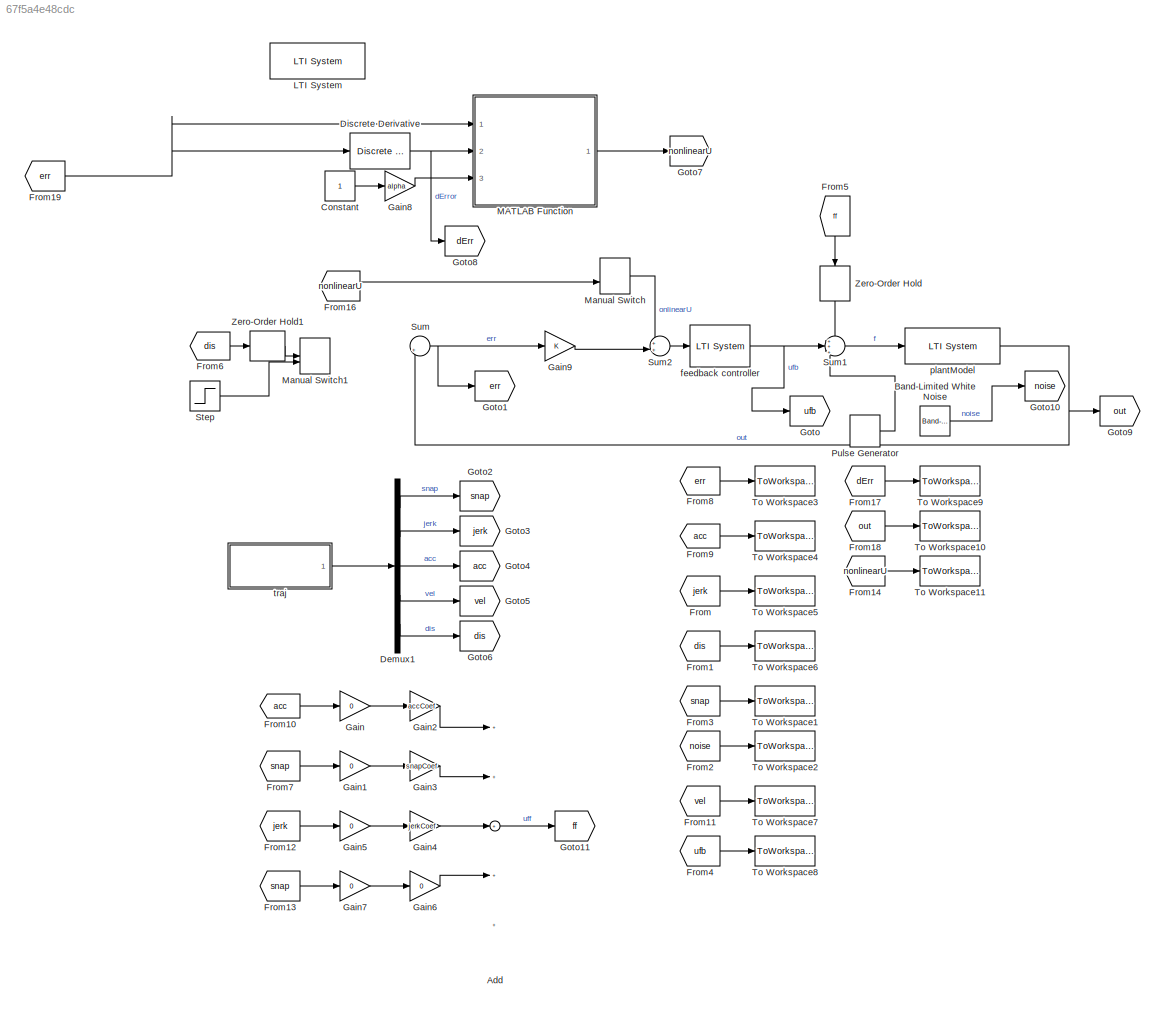
MODEL slx_67f5a4e48cdc
KIND model
CONFIG AbsTol = auto
CONFIG EnableMultiTasking = off
CONFIG FixedStep = 2e-4
CONFIG MaxStep = auto
CONFIG MinStep = auto
CONFIG RelTol = 1e-3
CONFIG SampleTimeConstraint = Unconstrained
CONFIG Solver = VariableStepAuto
CONFIG SolverName = VariableStepAuto
CONFIG StartTime = 0.0
CONFIG StopTime = 0.01
BLOCK [Sum] Add
  InputSameDT = off
  Inputs = +++++
  OutDataTypeStr = Inherit: Inherit via internal rule
  Ports = [5, 1]
  SaturateOnIntegerOverflow = off
BLOCK [Reference] Band-Limited White Noise  REF=simulink/Sources/Band-Limited
White Noise
  Ports = [0, 1]
  SourceBlock = simulink/Sources/Band-Limited\nWhite Noise
  SourceProductBaseCode = SL
  SourceProductName = Simulink
  SourceType = Band-Limited White Noise.
BLOCK [Constant] Constant
BLOCK [Demux] Demux1
  DisplayOption = bar
  Outputs = 5
  Ports = [1, 5]
BLOCK [Reference] Discrete Derivative  REF=simulink/Discrete/Discrete Derivative
  Ports = [1, 1]
  SourceBlock = simulink/Discrete/Discrete Derivative
  SourceProductBaseCode = SL
  SourceProductName = Simulink
  SourceType = Discrete Derivative
BLOCK [From] From
  GotoTag = jerk
BLOCK [From] From1
  GotoTag = dis
BLOCK [From] From10
  GotoTag = acc
BLOCK [From] From11
  GotoTag = vel
BLOCK [From] From12
  GotoTag = jerk
BLOCK [From] From13
  GotoTag = snap
BLOCK [From] From14
  GotoTag = nonlinearU
BLOCK [From] From16
  GotoTag = nonlinearU
BLOCK [From] From17
  GotoTag = dErr
BLOCK [From] From18
  GotoTag = out
BLOCK [From] From19
  GotoTag = err
BLOCK [From] From2
  GotoTag = noise
BLOCK [From] From3
  GotoTag = snap
BLOCK [From] From4
  GotoTag = ufb
BLOCK [From] From5
  GotoTag = ff
BLOCK [From] From6
  GotoTag = dis
BLOCK [From] From7
  GotoTag = snap
BLOCK [From] From8
  GotoTag = err
BLOCK [From] From9
  GotoTag = acc
BLOCK [Gain] Gain
  Gain = 0
  OutDataTypeStr = Inherit: Inherit via internal rule
  ParamDataTypeStr = Inherit: Inherit via internal rule
  SaturateOnIntegerOverflow = off
BLOCK [Gain] Gain1
  Gain = 0
  OutDataTypeStr = Inherit: Inherit via internal rule
  ParamDataTypeStr = Inherit: Inherit via internal rule
  SaturateOnIntegerOverflow = off
BLOCK [Gain] Gain2
  Gain = accCoef
  OutDataTypeStr = Inherit: Inherit via internal rule
  ParamDataTypeStr = Inherit: Inherit via internal rule
  SaturateOnIntegerOverflow = off
BLOCK [Gain] Gain3
  Gain = snapCoef
  OutDataTypeStr = Inherit: Inherit via internal rule
  ParamDataTypeStr = Inherit: Inherit via internal rule
  SaturateOnIntegerOverflow = off
BLOCK [Gain] Gain4
  Gain = jerkCoef
  OutDataTypeStr = Inherit: Inherit via internal rule
  ParamDataTypeStr = Inherit: Inherit via internal rule
  SaturateOnIntegerOverflow = off
BLOCK [Gain] Gain5
  Gain = 0
  OutDataTypeStr = Inherit: Inherit via internal rule
  ParamDataTypeStr = Inherit: Inherit via internal rule
  SaturateOnIntegerOverflow = off
BLOCK [Gain] Gain6
  Gain = 0
  OutDataTypeStr = Inherit: Inherit via internal rule
  ParamDataTypeStr = Inherit: Inherit via internal rule
  SaturateOnIntegerOverflow = off
BLOCK [Gain] Gain7
  Gain = 0
  OutDataTypeStr = Inherit: Inherit via internal rule
  ParamDataTypeStr = Inherit: Inherit via internal rule
  SaturateOnIntegerOverflow = off
BLOCK [Gain] Gain8
  Gain = alpha
  OutDataTypeStr = Inherit: Inherit via internal rule
  ParamDataTypeStr = Inherit: Inherit via internal rule
  SaturateOnIntegerOverflow = off
BLOCK [Gain] Gain9
  OutDataTypeStr = Inherit: Inherit via internal rule
  ParamDataTypeStr = Inherit: Inherit via internal rule
  SaturateOnIntegerOverflow = off
BLOCK [Goto] Goto
  GotoTag = ufb
BLOCK [Goto] Goto1
  GotoTag = err
BLOCK [Goto] Goto10
  GotoTag = noise
BLOCK [Goto] Goto11
  GotoTag = ff
BLOCK [Goto] Goto2
  GotoTag = snap
BLOCK [Goto] Goto3
  GotoTag = jerk
BLOCK [Goto] Goto4
  GotoTag = acc
BLOCK [Goto] Goto5
  GotoTag = vel
BLOCK [Goto] Goto6
  GotoTag = dis
BLOCK [Goto] Goto7
  GotoTag = nonlinearU
BLOCK [Goto] Goto8
  GotoTag = dErr
BLOCK [Goto] Goto9
  GotoTag = out
BLOCK [Reference] LTI System  REF=cstblocks/LTI System
  Ports = [1, 1]
  SourceBlock = cstblocks/LTI System
  SourceProductBaseCode = CT
  SourceProductName = Control System Toolbox
  SourceType = LTI Block
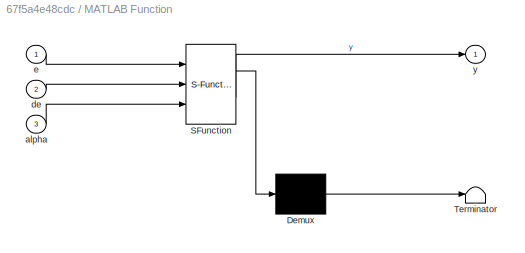
BLOCK [SubSystem] MATLAB Function
  ErrorFcn = Stateflow.Translate.translate
  PermitHierarchicalResolution = ExplicitOnly
  Ports = [3, 1]
  RequestExecContextInheritance = off
  SFBlockType = MATLAB Function
  TreatAsAtomicUnit = on
BLOCK [Demux] MATLAB Function/ Demux 
  Outputs = 1
  Ports = [1, 1]
BLOCK [S-Function] MATLAB Function/ SFunction 
  EnableBusSupport = on
  FunctionName = sf_sfun
  PortCounts = [3 2]
  Ports = [3, 2]
  SFcnIsStateOwnerBlock = off
  SFunctionDeploymentMode = off
  Tag = Stateflow S-Function 2
BLOCK [Terminator] MATLAB Function/ Terminator 
BLOCK [Inport] MATLAB Function/alpha
  IconDisplay = Port number
  Port = 3
BLOCK [Inport] MATLAB Function/de
  IconDisplay = Port number
  Port = 2
BLOCK [Inport] MATLAB Function/e
  IconDisplay = Port number
BLOCK [Outport] MATLAB Function/y
  IconDisplay = Port number
  VectorParamsAs1DForOutWhenUnconnected = off
BLOCK [ManualSwitch] Manual Switch
  CurrentSetting = 0
BLOCK [ManualSwitch] Manual Switch1
  CurrentSetting = 0
BLOCK [DiscretePulseGenerator] Pulse Generator
  Amplitude = 10
  Period = 0.01
  Ports = [0, 1]
  PulseType = Time based
  PulseWidth = 5
BLOCK [Step] Step
  After = 30e-6
  SampleTime = 0
  Time = 0
BLOCK [Sum] Sum
  IconShape = round
  InputSameDT = off
  Inputs = |+-
  OutDataTypeStr = Inherit: Inherit via internal rule
  Ports = [2, 1]
  SaturateOnIntegerOverflow = off
BLOCK [Sum] Sum1
  IconShape = round
  InputSameDT = off
  Inputs = ++|+
  OutDataTypeStr = Inherit: Inherit via internal rule
  Ports = [3, 1]
  SaturateOnIntegerOverflow = off
BLOCK [Sum] Sum2
  IconShape = round
  InputSameDT = off
  Inputs = ++|
  OutDataTypeStr = Inherit: Inherit via internal rule
  Ports = [2, 1]
  SaturateOnIntegerOverflow = off
BLOCK [ToWorkspace] To Workspace1
  FixptAsFi = on
  MaxDataPoints = inf
  Ports = [1]
  SampleTime = Ts
  SaveFormat = Structure With Time
  VariableName = snap
BLOCK [ToWorkspace] To Workspace10
  FixptAsFi = on
  MaxDataPoints = inf
  Ports = [1]
  SampleTime = Ts
  SaveFormat = Structure With Time
  VariableName = out
BLOCK [ToWorkspace] To Workspace11
  FixptAsFi = on
  MaxDataPoints = inf
  Ports = [1]
  SampleTime = Ts
  SaveFormat = Structure With Time
  VariableName = nonlinearU
BLOCK [ToWorkspace] To Workspace2
  FixptAsFi = on
  MaxDataPoints = inf
  Ports = [1]
  SampleTime = Ts
  SaveFormat = Structure With Time
  VariableName = noise
BLOCK [ToWorkspace] To Workspace3
  FixptAsFi = on
  MaxDataPoints = inf
  Ports = [1]
  SampleTime = Ts
  SaveFormat = Structure With Time
  VariableName = Err
BLOCK [ToWorkspace] To Workspace4
  FixptAsFi = on
  MaxDataPoints = inf
  Ports = [1]
  SampleTime = Ts
  SaveFormat = Structure With Time
  VariableName = acc
BLOCK [ToWorkspace] To Workspace5
  FixptAsFi = on
  MaxDataPoints = inf
  Ports = [1]
  SampleTime = Ts
  SaveFormat = Structure With Time
  VariableName = jerk
BLOCK [ToWorkspace] To Workspace6
  FixptAsFi = on
  MaxDataPoints = inf
  Ports = [1]
  SampleTime = Ts
  SaveFormat = Structure With Time
  VariableName = dis
BLOCK [ToWorkspace] To Workspace7
  FixptAsFi = on
  MaxDataPoints = inf
  Ports = [1]
  SampleTime = Ts
  SaveFormat = Structure With Time
  VariableName = vel
BLOCK [ToWorkspace] To Workspace8
  FixptAsFi = on
  MaxDataPoints = inf
  Ports = [1]
  SampleTime = Ts
  SaveFormat = Structure With Time
  VariableName = ufb
BLOCK [ToWorkspace] To Workspace9
  FixptAsFi = on
  MaxDataPoints = inf
  Ports = [1]
  SampleTime = Ts
  SaveFormat = Structure With Time
  VariableName = dErr
BLOCK [ZeroOrderHold] Zero-Order Hold
  SampleTime = Ts
BLOCK [ZeroOrderHold] Zero-Order Hold1
  SampleTime = Ts
BLOCK [Reference] feedback controller  REF=cstblocks/LTI System
  Ports = [1, 1]
  SourceBlock = cstblocks/LTI System
  SourceProductBaseCode = CT
  SourceProductName = Control System Toolbox
  SourceType = LTI Block
BLOCK [Reference] plantModel  REF=cstblocks/LTI System
  Ports = [1, 1]
  SourceBlock = cstblocks/LTI System
  SourceProductBaseCode = CT
  SourceProductName = Control System Toolbox
  SourceType = LTI Block
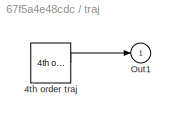
BLOCK [SubSystem] traj
  AttributesFormatString = %<BlockChoice>
  BlockChoice = 4th order traj
  MemberBlocks = 2th order traj,3rd order traj,4th order traj,step
  Ports = [0, 1]
  RequestExecContextInheritance = off
  TemplateBlock = model_controller/Profile Generators/traj
BLOCK [Reference] traj/4th order traj  REF=model_controller/Profile Generators/4th order traj  (lib defined in slx_45dcb428d456)
  Ports = [0, 1]
  SourceBlock = model_controller/Profile Generators/4th order traj
  SourceType = 4th Order Profile Generator
BLOCK [Outport] traj/Out1
  IconDisplay = Port number
LINE Add:1 -> Goto11:1
LINE Band-Limited White Noise:1 -> Goto10:1
LINE Constant:1 -> Gain8:1
LINE Demux1:1 -> Goto2:1
LINE Demux1:2 -> Goto3:1
LINE Demux1:3 -> Goto4:1
LINE Demux1:4 -> Goto5:1
LINE Demux1:5 -> Goto6:1
NET Discrete Derivative:1 -> Goto8:1, MATLAB Function:2
LINE From10:1 -> Gain:1
LINE From11:1 -> To Workspace7:1
LINE From12:1 -> Gain5:1
LINE From13:1 -> Gain7:1
LINE From14:1 -> To Workspace11:1
LINE From16:1 -> Manual Switch:2
LINE From17:1 -> To Workspace9:1
LINE From18:1 -> To Workspace10:1
NET From19:1 -> Discrete Derivative:1, MATLAB Function:1
LINE From1:1 -> To Workspace6:1
LINE From2:1 -> To Workspace2:1
LINE From3:1 -> To Workspace1:1
LINE From4:1 -> To Workspace8:1
LINE From5:1 -> Zero-Order Hold:1
LINE From6:1 -> Zero-Order Hold1:1
LINE From7:1 -> Gain1:1
LINE From8:1 -> To Workspace3:1
LINE From9:1 -> To Workspace4:1
LINE From:1 -> To Workspace5:1
LINE Gain1:1 -> Gain3:1
LINE Gain2:1 -> Add:1
LINE Gain3:1 -> Add:2
LINE Gain4:1 -> Add:3
LINE Gain5:1 -> Gain4:1
LINE Gain6:1 -> Add:4
LINE Gain7:1 -> Gain6:1
LINE Gain8:1 -> MATLAB Function:3
LINE Gain9:1 -> Sum2:2
LINE Gain:1 -> Gain2:1
LINE MATLAB Function:1 -> Goto7:1
LINE Manual Switch:1 -> Sum2:1
LINE Pulse Generator:1 -> Sum1:3
LINE Step:1 -> Manual Switch1:2
LINE Sum1:1 -> plantModel:1
LINE Sum2:1 -> feedback controller:1
NET Sum:1 -> Gain9:1, Goto1:1
LINE Zero-Order Hold1:1 -> Manual Switch1:1
LINE Zero-Order Hold:1 -> Sum1:1
NET feedback controller:1 -> Goto:1, Sum1:2
NET plantModel:1 -> Goto9:1, Sum:2
LINE traj:1 -> Demux1:1
note: NET lines group one-source signal fan-out (src -> all destinations, sorted); 1:1 wires keep LINE
CHART MATLAB Function states=1 transitions=1
  STATE_LABEL 'eML_blk_kernel()'
  STATE_LABEL 'SCRIPT:\nfunction y = nonlinearFeedback(e,de,alpha)\nif e*de>0\n    y = alpha * e;\nelse\n    y = 0;\nend\n\n'
